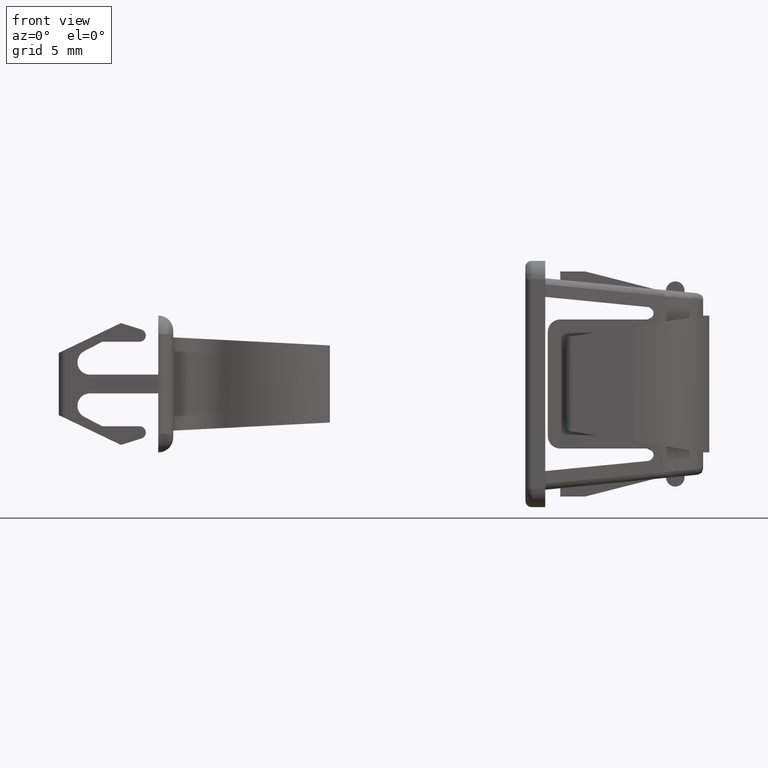
[diagram: clean part render]
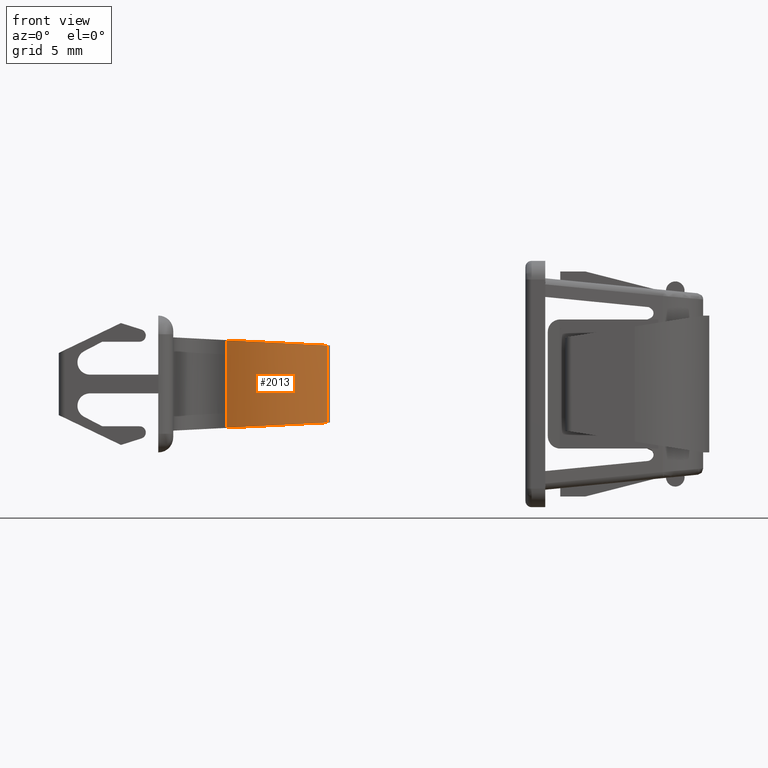
[diagram: same view with one face highlighted and labeled with its STEP entity id]
A machine part, front view. The second image highlights one B-rep face of the part: STEP entity #2013.
In plain terms, the highlighted face is a freeform B-spline surface patch.
Its self-contained STEP definition (entity closure, byte-faithful):
#1757=CARTESIAN_POINT('',(-15.920681130065750,-0.401669428756294,-3.110433715729675));
#1758=VERTEX_POINT('',#1757);
#1771=CARTESIAN_POINT('',(-24.054763989830949,-1.230637804719916,-3.530048443851740));
#1772=VERTEX_POINT('',#1771);
#1773=CARTESIAN_POINT('',(-24.054763989830949,-1.230637804719897,-3.530048443851709));
#1774=CARTESIAN_POINT('',(-19.741312936096080,-3.233997717887212,-3.307529492128948));
#1775=CARTESIAN_POINT('',(-15.920681130065750,-0.401669428756294,-3.110433715729675));
#1783=(BOUNDED_CURVE()B_SPLINE_CURVE(2,(#1773,#1774,#1775),.UNSPECIFIED.,.F.,.U.)CURVE()GEOMETRIC_REPRESENTATION_ITEM()QUASI_UNIFORM_CURVE()RATIONAL_B_SPLINE_CURVE((1.0,0.859572721486674,1.0))REPRESENTATION_ITEM(''));
#1784=EDGE_CURVE('',#1772,#1758,#1783,.T.);
#1842=CARTESIAN_POINT('',(-24.054763989830949,-1.230637804719916,3.530048443851740));
#1843=VERTEX_POINT('',#1842);
#1859=CARTESIAN_POINT('',(-15.920681130065800,-0.401669428756291,3.110433715729675));
#1860=VERTEX_POINT('',#1859);
#1861=CARTESIAN_POINT('',(-15.920681130065800,-0.401669428756291,3.110433715729675));
#1862=CARTESIAN_POINT('',(-19.741312936095127,-3.233997717887619,3.307529492129008));
#1863=CARTESIAN_POINT('',(-24.054763989830910,-1.230637804719917,3.530048443851817));
#1871=(BOUNDED_CURVE()B_SPLINE_CURVE(2,(#1861,#1862,#1863),.UNSPECIFIED.,.F.,.U.)CURVE()GEOMETRIC_REPRESENTATION_ITEM()QUASI_UNIFORM_CURVE()RATIONAL_B_SPLINE_CURVE((1.0,0.859572721486627,1.0))REPRESENTATION_ITEM(''));
#1872=EDGE_CURVE('',#1860,#1843,#1871,.T.);
#1979=CARTESIAN_POINT('',(-24.054763989830949,-1.230637804719916,3.530048443851740));
#1980=CARTESIAN_POINT('',(-24.054763989830949,-1.230637804719916,-3.530048443851740));
#1981=QUASI_UNIFORM_CURVE('',1,(#1979,#1980),.UNSPECIFIED.,.F.,.U.);
#1982=EDGE_CURVE('',#1843,#1772,#1981,.T.);
#1989=CARTESIAN_POINT('',(-24.310570282590160,-1.106254363526364,3.706550866044327));
#1990=CARTESIAN_POINT('',(-24.310570282590160,-1.106254363526364,-3.710963426599142));
#1991=CARTESIAN_POINT('',(-19.642065821581856,-3.479800677226861,3.706550866044327));
#1992=CARTESIAN_POINT('',(-19.642065821581856,-3.479800677226861,-3.710963426599142));
#1993=CARTESIAN_POINT('',(-15.599277612114699,-0.150458475060025,3.706550866044327));
#1994=CARTESIAN_POINT('',(-15.599277612114699,-0.150458475060025,-3.710963426599143));
#2002=(BOUNDED_SURFACE()B_SPLINE_SURFACE(1,2,((#1989,#1991,#1993),(#1990,#1992,#1994)),.UNSPECIFIED.,.F.,.F.,.U.)B_SPLINE_SURFACE_WITH_KNOTS((2,2),(3,3),(0.0,7.417514292643470),(0.0,9.542900544927766),.UNSPECIFIED.)GEOMETRIC_REPRESENTATION_ITEM()RATIONAL_B_SPLINE_SURFACE(((1.0,0.833230553340043,0.991819710379397),(1.0,0.833230553340043,0.991819710379397)))REPRESENTATION_ITEM('')SURFACE());
#2003=ORIENTED_EDGE('',*,*,#1982,.T.);
#2004=ORIENTED_EDGE('',*,*,#1784,.T.);
#2005=CARTESIAN_POINT('',(-15.920681130065800,-0.401669428756291,3.110433715729675));
#2006=CARTESIAN_POINT('',(-15.920681130065750,-0.401669428756294,-3.110433715729675));
#2007=QUASI_UNIFORM_CURVE('',1,(#2005,#2006),.UNSPECIFIED.,.F.,.U.);
#2008=EDGE_CURVE('',#1860,#1758,#2007,.T.);
#2009=ORIENTED_EDGE('',*,*,#2008,.F.);
#2010=ORIENTED_EDGE('',*,*,#1872,.T.);
#2011=EDGE_LOOP('',(#2003,#2004,#2009,#2010));
#2012=FACE_OUTER_BOUND('',#2011,.T.);
#2013=ADVANCED_FACE('',(#2012),#2002,.T.);